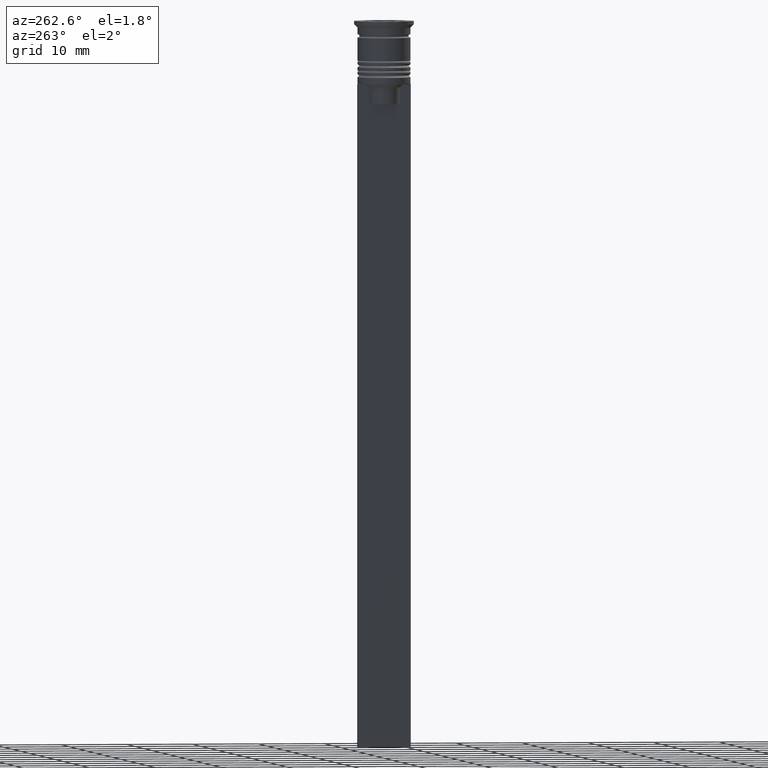
[diagram: clean part render]
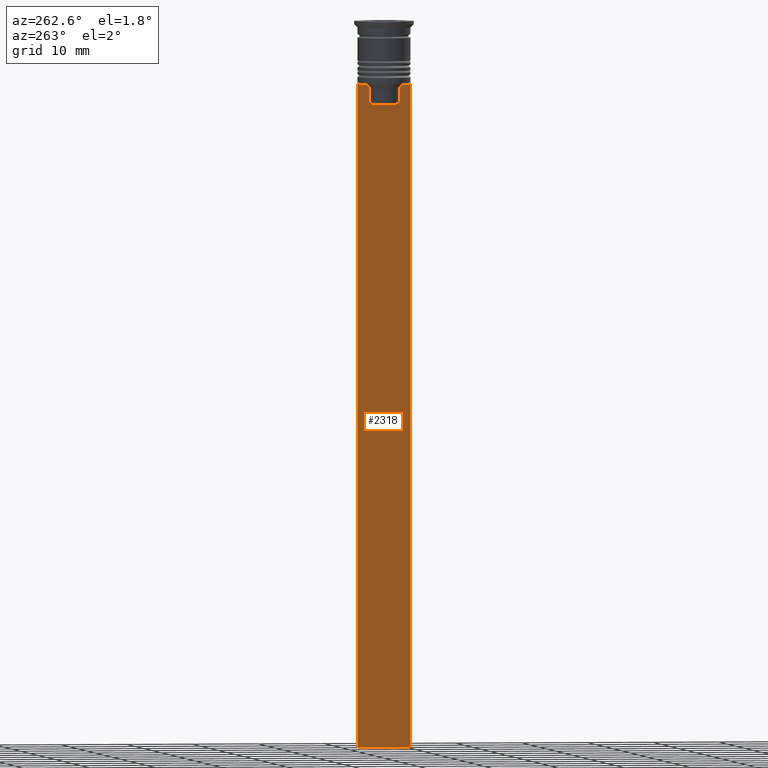
[diagram: same view with one face highlighted and labeled with its STEP entity id]
A machine part, auxiliary view. The second image highlights one B-rep face of the part: STEP entity #2318.
In plain terms, the highlighted planar face has unit normal (-1, 0, 0).
Its self-contained STEP definition (entity closure, byte-faithful):
#12 = VERTEX_POINT ( 'NONE', #622 ) ;
#14 = VECTOR ( 'NONE', #1185, 1000.000000000000000 ) ;
#18 = VERTEX_POINT ( 'NONE', #2181 ) ;
#38 = ORIENTED_EDGE ( 'NONE', *, *, #2467, .F. ) ;
#72 = VECTOR ( 'NONE', #2035, 1000.000000000000000 ) ;
#76 = DIRECTION ( 'NONE',  ( 0.000000000000000000, 1.000000000000000000, 0.000000000000000000 ) ) ;
#103 = CARTESIAN_POINT ( 'NONE',  ( -0.5000000000000000000, 2.347338918861097135, -10.00000000000000000 ) ) ;
#129 = CARTESIAN_POINT ( 'NONE',  ( -0.5000000000000000000, 2.399999999999996803, -12.50000000000000000 ) ) ;
#143 = DIRECTION ( 'NONE',  ( -1.000000000000000000, 0.000000000000000000, 0.000000000000000000 ) ) ;
#155 = DIRECTION ( 'NONE',  ( 0.000000000000000000, 0.000000000000000000, -1.000000000000000000 ) ) ;
#158 = EDGE_CURVE ( 'NONE', #1137, #182, #2045, .T. ) ;
#159 = LINE ( 'NONE', #129, #2508 ) ;
#182 = VERTEX_POINT ( 'NONE', #1082 ) ;
#206 = ORIENTED_EDGE ( 'NONE', *, *, #1859, .F. ) ;
#216 = ORIENTED_EDGE ( 'NONE', *, *, #1096, .F. ) ;
#230 = EDGE_CURVE ( 'NONE', #1806, #293, #2291, .T. ) ;
#246 = LINE ( 'NONE', #1029, #406 ) ;
#257 = B_SPLINE_CURVE_WITH_KNOTS ( 'NONE', 3,
 ( #2071, #525, #1311, #103 ),
 .UNSPECIFIED., .F., .F.,
 ( 4, 4 ),
 ( 0.004956812174141195064, 0.005670477137898153989 ),
 .UNSPECIFIED. ) ;
#293 = VERTEX_POINT ( 'NONE', #349 ) ;
#296 = CARTESIAN_POINT ( 'NONE',  ( -0.5000000000000000000, -4.000000000000000000, -9.500000000000000000 ) ) ;
#336 = EDGE_CURVE ( 'NONE', #1030, #12, #737, .T. ) ;
#341 = VECTOR ( 'NONE', #2119, 1000.000000000000000 ) ;
#342 = LINE ( 'NONE', #931, #341 ) ;
#349 = CARTESIAN_POINT ( 'NONE',  ( -0.5000000000000000000, 3.867815921162741422, -9.500000000000000000 ) ) ;
#365 = DIRECTION ( 'NONE',  ( 0.000000000000000000, -1.000000000000000000, 0.000000000000000000 ) ) ;
#379 = VERTEX_POINT ( 'NONE', #1624 ) ;
#390 = VERTEX_POINT ( 'NONE', #2403 ) ;
#404 = CARTESIAN_POINT ( 'NONE',  ( -0.5000000000000000000, 4.000000000000000000, -1.437742251701450202 ) ) ;
#406 = VECTOR ( 'NONE', #825, 1000.000000000000000 ) ;
#465 = AXIS2_PLACEMENT_3D ( 'NONE', #1367, #143, #2339 ) ;
#505 = LINE ( 'NONE', #2495, #1550 ) ;
#507 = CARTESIAN_POINT ( 'NONE',  ( -0.5000000000000000000, -2.856571371417138572, -9.500000000000000000 ) ) ;
#509 = ORIENTED_EDGE ( 'NONE', *, *, #670, .F. ) ;
#525 = CARTESIAN_POINT ( 'NONE',  ( -0.5000000000000000000, 2.687094542495897631, -9.666938847453439010 ) ) ;
#555 = EDGE_CURVE ( 'NONE', #293, #18, #505, .T. ) ;
#622 = CARTESIAN_POINT ( 'NONE',  ( -0.5000000000000000000, 2.347338918861097135, -12.50000000000000000 ) ) ;
#624 = ORIENTED_EDGE ( 'NONE', *, *, #230, .F. ) ;
#670 = EDGE_CURVE ( 'NONE', #1281, #2174, #342, .T. ) ;
#684 = VECTOR ( 'NONE', #155, 1000.000000000000000 ) ;
#707 = VECTOR ( 'NONE', #1720, 1000.000000000000000 ) ;
#715 = B_SPLINE_CURVE_WITH_KNOTS ( 'NONE', 3,
 ( #1278, #933, #1074, #507 ),
 .UNSPECIFIED., .F., .F.,
 ( 4, 4 ),
 ( 0.01178336557230038641, 0.01249758354768160454 ),
 .UNSPECIFIED. ) ;
#737 = LINE ( 'NONE', #1364, #684 ) ;
#781 = FACE_OUTER_BOUND ( 'NONE', #1916, .T. ) ;
#825 = DIRECTION ( 'NONE',  ( 0.000000000000000000, -1.000000000000000000, 0.000000000000000000 ) ) ;
#931 = CARTESIAN_POINT ( 'NONE',  ( -0.5000000000000000000, -2.347338918861097135, 0.000000000000000000 ) ) ;
#933 = CARTESIAN_POINT ( 'NONE',  ( -0.5000000000000000000, -2.517408374291112416, -9.833662228483172285 ) ) ;
#983 = EDGE_CURVE ( 'NONE', #1806, #379, #1353, .T. ) ;
#1029 = CARTESIAN_POINT ( 'NONE',  ( -0.5000000000000000000, -4.000000000000000000, -9.500000000000000000 ) ) ;
#1030 = VERTEX_POINT ( 'NONE', #1414 ) ;
#1052 = LINE ( 'NONE', #2227, #2180 ) ;
#1074 = CARTESIAN_POINT ( 'NONE',  ( -0.5000000000000000000, -2.687095498514037839, -9.666937905752043037 ) ) ;
#1082 = CARTESIAN_POINT ( 'NONE',  ( -0.5000000000000000000, -4.000000000000000000, -9.500000000000000000 ) ) ;
#1096 = EDGE_CURVE ( 'NONE', #2251, #379, #1052, .T. ) ;
#1117 = CARTESIAN_POINT ( 'NONE',  ( -0.5000000000000000000, 4.000000000000000000, -9.500000000000000000 ) ) ;
#1124 = ORIENTED_EDGE ( 'NONE', *, *, #158, .F. ) ;
#1137 = VERTEX_POINT ( 'NONE', #1605 ) ;
#1142 = CARTESIAN_POINT ( 'NONE',  ( -0.5000000000000000000, -4.000000000000000000, -9.500000000000000000 ) ) ;
#1158 = CARTESIAN_POINT ( 'NONE',  ( -0.5000000000000000000, -2.347338918861097135, -10.00000000000000000 ) ) ;
#1185 = DIRECTION ( 'NONE',  ( 0.000000000000000000, 0.000000000000000000, -1.000000000000000000 ) ) ;
#1278 = CARTESIAN_POINT ( 'NONE',  ( -0.5000000000000000000, -2.347338918861097135, -10.00000000000000000 ) ) ;
#1281 = VERTEX_POINT ( 'NONE', #2484 ) ;
#1311 = CARTESIAN_POINT ( 'NONE',  ( -0.5000000000000000000, 2.517407211010871393, -9.833663366238582171 ) ) ;
#1353 = LINE ( 'NONE', #404, #14 ) ;
#1364 = CARTESIAN_POINT ( 'NONE',  ( -0.5000000000000000000, 2.347338918861097135, 0.000000000000000000 ) ) ;
#1367 = CARTESIAN_POINT ( 'NONE',  ( -0.5000000000000000000, -4.000000000000000000, -1.437742251701450202 ) ) ;
#1383 = ORIENTED_EDGE ( 'NONE', *, *, #2205, .F. ) ;
#1414 = CARTESIAN_POINT ( 'NONE',  ( -0.5000000000000000000, 2.347338918861097135, -10.00000000000000000 ) ) ;
#1440 = ORIENTED_EDGE ( 'NONE', *, *, #555, .F. ) ;
#1514 = LINE ( 'NONE', #2086, #707 ) ;
#1550 = VECTOR ( 'NONE', #2234, 1000.000000000000000 ) ;
#1556 = EDGE_CURVE ( 'NONE', #390, #1137, #246, .T. ) ;
#1605 = CARTESIAN_POINT ( 'NONE',  ( -0.5000000000000000000, -3.867815921162741422, -9.500000000000000000 ) ) ;
#1624 = CARTESIAN_POINT ( 'NONE',  ( -0.5000000000000000000, 4.000000000000000000, -109.5000000000000000 ) ) ;
#1720 = DIRECTION ( 'NONE',  ( 0.000000000000000000, 0.000000000000000000, -1.000000000000000000 ) ) ;
#1795 = VECTOR ( 'NONE', #2528, 1000.000000000000000 ) ;
#1806 = VERTEX_POINT ( 'NONE', #1117 ) ;
#1859 = EDGE_CURVE ( 'NONE', #18, #1030, #257, .T. ) ;
#1900 = ORIENTED_EDGE ( 'NONE', *, *, #2232, .F. ) ;
#1916 = EDGE_LOOP ( 'NONE', ( #206, #1440, #624, #2163, #216, #1383, #1124, #2383, #38, #509, #1900, #2094 ) ) ;
#2035 = DIRECTION ( 'NONE',  ( 0.000000000000000000, -1.000000000000000000, 0.000000000000000000 ) ) ;
#2045 = LINE ( 'NONE', #296, #72 ) ;
#2071 = CARTESIAN_POINT ( 'NONE',  ( -0.5000000000000000000, 2.856571371417138572, -9.500000000000000000 ) ) ;
#2086 = CARTESIAN_POINT ( 'NONE',  ( -0.5000000000000000000, -4.000000000000000000, -1.437742251701450202 ) ) ;
#2094 = ORIENTED_EDGE ( 'NONE', *, *, #336, .F. ) ;
#2119 = DIRECTION ( 'NONE',  ( -0.000000000000000000, -0.000000000000000000, 1.000000000000000000 ) ) ;
#2163 = ORIENTED_EDGE ( 'NONE', *, *, #983, .T. ) ;
#2174 = VERTEX_POINT ( 'NONE', #1158 ) ;
#2180 = VECTOR ( 'NONE', #76, 1000.000000000000000 ) ;
#2181 = CARTESIAN_POINT ( 'NONE',  ( -0.5000000000000000000, 2.856571371417138572, -9.500000000000000000 ) ) ;
#2205 = EDGE_CURVE ( 'NONE', #182, #2251, #1514, .T. ) ;
#2227 = CARTESIAN_POINT ( 'NONE',  ( -0.5000000000000000000, -4.000000000000000000, -109.5000000000000000 ) ) ;
#2232 = EDGE_CURVE ( 'NONE', #12, #1281, #159, .T. ) ;
#2234 = DIRECTION ( 'NONE',  ( 0.000000000000000000, -1.000000000000000000, 0.000000000000000000 ) ) ;
#2251 = VERTEX_POINT ( 'NONE', #2519 ) ;
#2291 = LINE ( 'NONE', #1142, #1795 ) ;
#2318 = ADVANCED_FACE ( 'NONE', ( #781 ), #2490, .T. ) ;
#2339 = DIRECTION ( 'NONE',  ( 0.000000000000000000, 0.000000000000000000, 1.000000000000000000 ) ) ;
#2383 = ORIENTED_EDGE ( 'NONE', *, *, #1556, .F. ) ;
#2403 = CARTESIAN_POINT ( 'NONE',  ( -0.5000000000000000000, -2.856571371417138572, -9.500000000000000000 ) ) ;
#2467 = EDGE_CURVE ( 'NONE', #2174, #390, #715, .T. ) ;
#2484 = CARTESIAN_POINT ( 'NONE',  ( -0.5000000000000000000, -2.347338918861097135, -12.50000000000000000 ) ) ;
#2490 = PLANE ( 'NONE',  #465 ) ;
#2495 = CARTESIAN_POINT ( 'NONE',  ( -0.5000000000000000000, -4.000000000000000000, -9.500000000000000000 ) ) ;
#2508 = VECTOR ( 'NONE', #365, 1000.000000000000000 ) ;
#2519 = CARTESIAN_POINT ( 'NONE',  ( -0.5000000000000000000, -4.000000000000000000, -109.5000000000000000 ) ) ;
#2528 = DIRECTION ( 'NONE',  ( 0.000000000000000000, -1.000000000000000000, 0.000000000000000000 ) ) ;